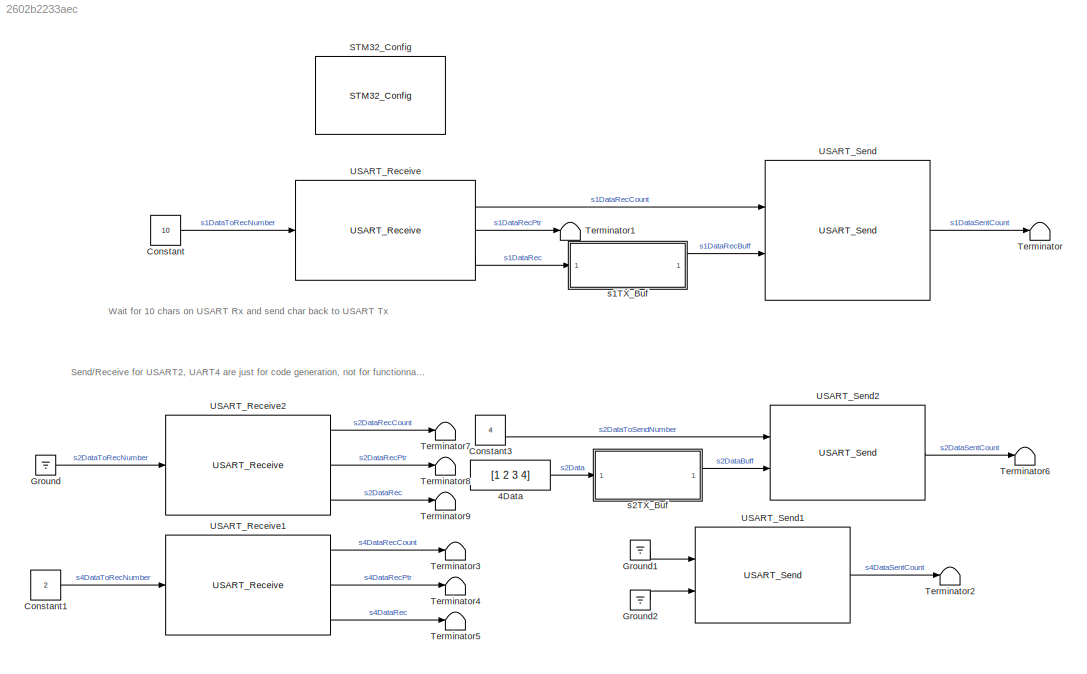
MODEL slx_2602b2233aec
KIND model
CONFIG AbsTol = auto
CONFIG EnableMultiTasking = on
CONFIG FixedStep = 0.5
CONFIG MaxStep = auto
CONFIG MinStep = auto
CONFIG RelTol = 1e-3
CONFIG SampleTimeConstraint = Unconstrained
CONFIG Solver = FixedStepDiscrete
CONFIG SolverName = FixedStepDiscrete
CONFIG StartTime = 0.0
CONFIG StopTime = 10
BLOCK [Constant] 4Data
  OutDataTypeStr = uint8
  Value = [1 2 3 4]
BLOCK [Constant] Constant
  OutDataTypeStr = uint16
  Value = 10
BLOCK [Constant] Constant1
  OutDataTypeStr = uint16
  Value = 2
BLOCK [Constant] Constant3
  OutDataTypeStr = uint16
  Value = 4
BLOCK [Ground] Ground
BLOCK [Ground] Ground1
BLOCK [Ground] Ground2
BLOCK [Reference] STM32_Config  REF=STM32_Config_Lib/STM32_Config
  Ports = []
  Priority = 0
  SourceBlock = STM32_Config_Lib/STM32_Config
  SourceProductName = Target Support Package - STM32 Adapter
  SourceType = STM32_Config
BLOCK [Terminator] Terminator
BLOCK [Terminator] Terminator1
BLOCK [Terminator] Terminator2
BLOCK [Terminator] Terminator3
BLOCK [Terminator] Terminator4
BLOCK [Terminator] Terminator5
BLOCK [Terminator] Terminator6
BLOCK [Terminator] Terminator7
BLOCK [Terminator] Terminator8
BLOCK [Terminator] Terminator9
BLOCK [Reference] USART_Receive  REF=USART_Lib/USART_Receive
  Ports = [1, 3]
  SourceBlock = USART_Lib/USART_Receive
  SourceProductName = Target Support Package - STM32 Adapter
  SourceType = USART_Receive
BLOCK [Reference] USART_Receive1  REF=USART_Lib/USART_Receive
  Ports = [1, 3]
  SourceBlock = USART_Lib/USART_Receive
  SourceProductName = Target Support Package - STM32 Adapter
  SourceType = USART_Receive
BLOCK [Reference] USART_Receive2  REF=USART_Lib/USART_Receive
  Ports = [1, 3]
  SourceBlock = USART_Lib/USART_Receive
  SourceProductName = Target Support Package - STM32 Adapter
  SourceType = USART_Receive
BLOCK [Reference] USART_Send  REF=USART_Lib/USART_Send
  Ports = [2, 1]
  SourceBlock = USART_Lib/USART_Send
  SourceProductName = Target Support Package - STM32 Adapter
  SourceType = USART_Send
BLOCK [Reference] USART_Send1  REF=USART_Lib/USART_Send
  Ports = [2, 1]
  SourceBlock = USART_Lib/USART_Send
  SourceProductName = Target Support Package - STM32 Adapter
  SourceType = USART_Send
BLOCK [Reference] USART_Send2  REF=USART_Lib/USART_Send
  Ports = [2, 1]
  SourceBlock = USART_Lib/USART_Send
  SourceProductName = Target Support Package - STM32 Adapter
  SourceType = USART_Send
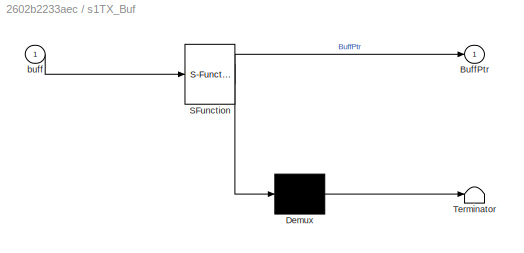
BLOCK [SubSystem] s1TX_Buf
  ErrorFcn = Stateflow.Translate.translate
  PermitHierarchicalResolution = ExplicitOnly
  Ports = [1, 1]
  RequestExecContextInheritance = off
  SFBlockType = MATLAB Function
  TreatAsAtomicUnit = on
BLOCK [Demux] s1TX_Buf/ Demux 
  Outputs = 1
  Ports = [1, 1]
BLOCK [S-Function] s1TX_Buf/ SFunction 
  EnableBusSupport = on
  FunctionName = sf_sfun
  PortCounts = [1 2]
  Ports = [1, 2]
  SFcnIsStateOwnerBlock = off
  SFunctionDeploymentMode = off
  Tag = Stateflow S-Function USART_1_Receive_Send 2
BLOCK [Terminator] s1TX_Buf/ Terminator 
BLOCK [Outport] s1TX_Buf/BuffPtr
  IconDisplay = Port number
BLOCK [Inport] s1TX_Buf/buff
  IconDisplay = Port number
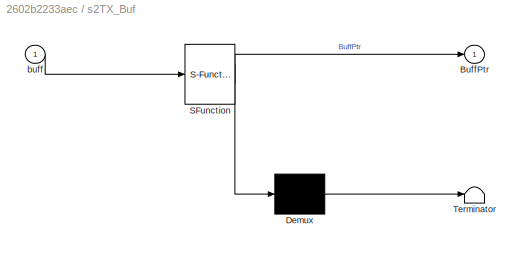
BLOCK [SubSystem] s2TX_Buf
  ErrorFcn = Stateflow.Translate.translate
  PermitHierarchicalResolution = ExplicitOnly
  Ports = [1, 1]
  RequestExecContextInheritance = off
  SFBlockType = MATLAB Function
  TreatAsAtomicUnit = on
BLOCK [Demux] s2TX_Buf/ Demux 
  Outputs = 1
  Ports = [1, 1]
BLOCK [S-Function] s2TX_Buf/ SFunction 
  EnableBusSupport = on
  FunctionName = sf_sfun
  PortCounts = [1 2]
  Ports = [1, 2]
  SFcnIsStateOwnerBlock = off
  SFunctionDeploymentMode = off
  Tag = Stateflow S-Function USART_1_Receive_Send 1
BLOCK [Terminator] s2TX_Buf/ Terminator 
BLOCK [Outport] s2TX_Buf/BuffPtr
  IconDisplay = Port number
BLOCK [Inport] s2TX_Buf/buff
  IconDisplay = Port number
ANNOTATION (root): Wait for 10 chars on USART Rx and send char back to USART Tx
ANNOTATION (root): Send/Receive for USART2, UART4 are just for code generation, not for functionnal testing.
LINE 4Data:1 -> s2TX_Buf:1
LINE Constant1:1 -> USART_Receive1:1
LINE Constant3:1 -> USART_Send2:1
LINE Constant:1 -> USART_Receive:1
LINE Ground1:1 -> USART_Send1:1
LINE Ground2:1 -> USART_Send1:2
LINE Ground:1 -> USART_Receive2:1
LINE USART_Receive1:1 -> Terminator3:1
LINE USART_Receive1:2 -> Terminator4:1
LINE USART_Receive1:3 -> Terminator5:1
LINE USART_Receive2:1 -> Terminator7:1
LINE USART_Receive2:2 -> Terminator8:1
LINE USART_Receive2:3 -> Terminator9:1
LINE USART_Receive:1 -> USART_Send:1
LINE USART_Receive:2 -> Terminator1:1
LINE USART_Receive:3 -> s1TX_Buf:1
LINE USART_Send1:1 -> Terminator2:1
LINE USART_Send2:1 -> Terminator6:1
LINE USART_Send:1 -> Terminator:1
LINE s1TX_Buf:1 -> USART_Send:2
LINE s2TX_Buf:1 -> USART_Send2:2
CHART s2TX_Buf states=1 transitions=1
  STATE_LABEL 'eML_blk_kernel()'
  STATE_LABEL "SCRIPT:\nfunction BuffPtr = convert(buff)\nif coder.target('Sfun')\n    % Executing in MATLAB, Buff is null\n    BuffPtr = uint32(0);\n    %NbChar = uint16(0);\nelse\n    coder.cinclude('getBuffPtr.h');\n    % Executing in the generated code.\n    BuffPtr = coder.ceval('getBuffPtr',coder.rref(buff));\nend\nend\n"
CHART s1TX_Buf states=1 transitions=1
  STATE_LABEL 'eML_blk_kernel()'
  STATE_LABEL "SCRIPT:\nfunction BuffPtr = convert(buff)\nif coder.target('Sfun')\n    % Executing in MATLAB, Buff is null\n    BuffPtr = uint32(0);\n    %NbChar = uint16(0);\nelse\n    coder.cinclude('getBuffPtr.h');\n    % Executing in the generated code.\n    BuffPtr = coder.ceval('getBuffPtr',coder.rref(buff));\nend\nend\n"
